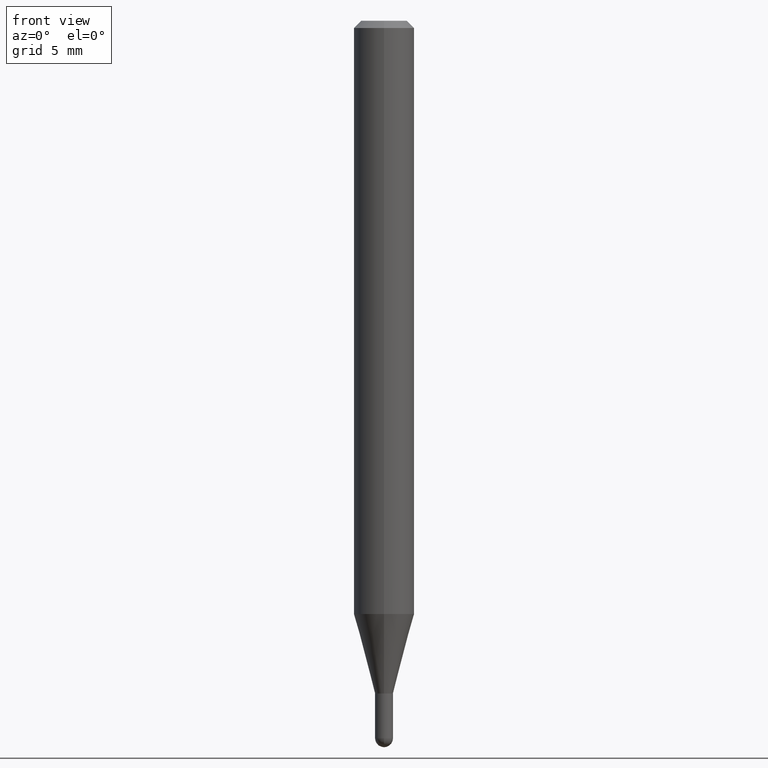
[diagram: clean part render]
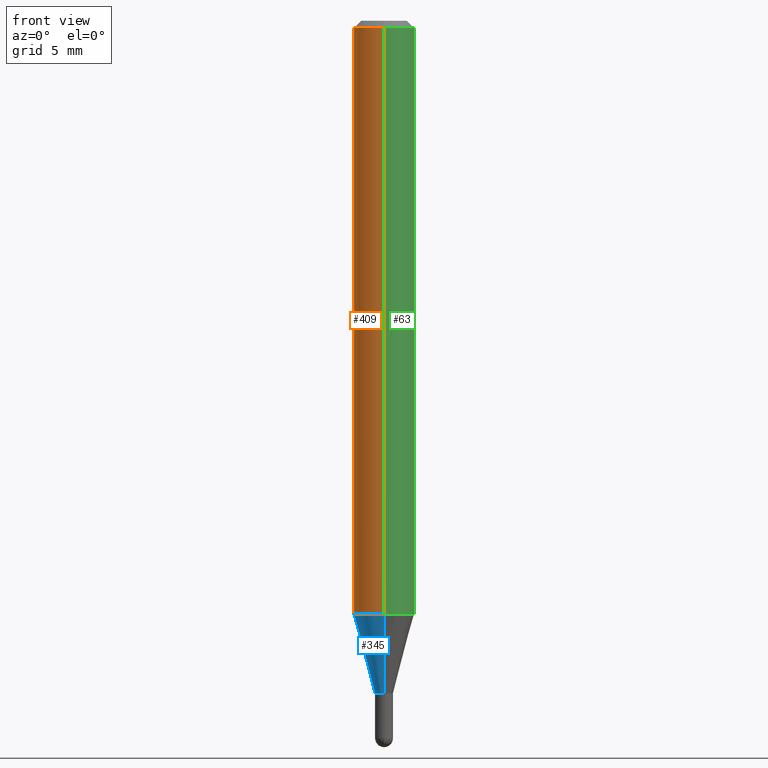
[diagram: same view with three faces highlighted in distinct colors, each labeled with its STEP entity id]
A machine part, front view with three faces highlighted in distinct colors.
Their STEP definitions:

[orange] entity #409 — the highlighted cylindrical surface (edge-blend (fillet) strip) has radius 1.5875 mm, axis along (-0, 0, 1).
#7 = CARTESIAN_POINT ( 'NONE',  ( -4.364351673553618406E-16, -0.06250000000000428824, -1.224789764466974296 ) ) ;
#23 = VECTOR ( 'NONE', #125, 39.37007874015748143 ) ;
#37 = EDGE_CURVE ( 'NONE', #161, #433, #406, .T. ) ;
#42 = DIRECTION ( 'NONE',  ( -6.982962677686265922E-15, -1.000000000000000000, 3.483106191921935554E-15 ) ) ;
#51 = CYLINDRICAL_SURFACE ( 'NONE', #77, 0.06250000000000000000 ) ;
#77 = AXIS2_PLACEMENT_3D ( 'NONE', #287, #94, #407 ) ;
#94 = DIRECTION ( 'NONE',  ( -2.445472053638043115E-29, 3.491476688305749916E-15, 1.000000000000000000 ) ) ;
#109 = CARTESIAN_POINT ( 'NONE',  ( 4.440892098500927901E-16, 0.06249999999999995837, -0.01500000000000022669 ) ) ;
#121 = CARTESIAN_POINT ( 'NONE',  ( 4.440892098500922971E-16, 0.06249999999999570482, -1.224789764466974962 ) ) ;
#125 = DIRECTION ( 'NONE',  ( -2.445472053638043115E-29, 3.491476688305749916E-15, 1.000000000000000000 ) ) ;
#161 = VERTEX_POINT ( 'NONE', #109 ) ;
#192 = DIRECTION ( 'NONE',  ( -2.445472053638043115E-29, 3.491476688305749916E-15, 1.000000000000000000 ) ) ;
#224 = DIRECTION ( 'NONE',  ( -6.982962677686265922E-15, -1.000000000000000000, 4.370956789862821150E-15 ) ) ;
#232 = AXIS2_PLACEMENT_3D ( 'NONE', #238, #402, #42 ) ;
#238 = CARTESIAN_POINT ( 'NONE',  ( 3.668208080457066968E-31, -5.237215032458628178E-17, -0.01500000000000000812 ) ) ;
#248 = FACE_OUTER_BOUND ( 'NONE', #353, .T. ) ;
#287 = CARTESIAN_POINT ( 'NONE',  ( 0.000000000000000000, 0.000000000000000000, 0.000000000000000000 ) ) ;
#307 = EDGE_CURVE ( 'NONE', #351, #437, #503, .T. ) ;
#314 = ORIENTED_EDGE ( 'NONE', *, *, #379, .F. ) ;
#322 = LINE ( 'NONE', #472, #23 ) ;
#329 = LINE ( 'NONE', #408, #347 ) ;
#347 = VECTOR ( 'NONE', #378, 39.37007874015748143 ) ;
#351 = VERTEX_POINT ( 'NONE', #121 ) ;
#353 = EDGE_LOOP ( 'NONE', ( #314, #429, #470, #412 ) ) ;
#355 = CARTESIAN_POINT ( 'NONE',  ( 2.995189140585907376E-29, -4.276324910711931920E-15, -1.224789764466974740 ) ) ;
#378 = DIRECTION ( 'NONE',  ( -2.445472053638043115E-29, 3.491476688305749916E-15, 1.000000000000000000 ) ) ;
#379 = EDGE_CURVE ( 'NONE', #351, #161, #322, .T. ) ;
#402 = DIRECTION ( 'NONE',  ( -2.445472053638043115E-29, 3.491476688305749916E-15, 1.000000000000000000 ) ) ;
#406 = CIRCLE ( 'NONE', #232, 0.06250000000000000000 ) ;
#407 = DIRECTION ( 'NONE',  ( -6.982962677686265922E-15, -1.000000000000000000, 3.491476688305749522E-15 ) ) ;
#408 = CARTESIAN_POINT ( 'NONE',  ( -4.364351673553916201E-16, -0.06250000000000000000, 2.182172930191093451E-16 ) ) ;
#409 = ADVANCED_FACE ( 'NONE', ( #248 ), #51, .T. ) ;
#412 = ORIENTED_EDGE ( 'NONE', *, *, #37, .F. ) ;
#419 = AXIS2_PLACEMENT_3D ( 'NONE', #355, #192, #224 ) ;
#427 = EDGE_CURVE ( 'NONE', #437, #433, #329, .T. ) ;
#429 = ORIENTED_EDGE ( 'NONE', *, *, #307, .T. ) ;
#433 = VERTEX_POINT ( 'NONE', #445 ) ;
#437 = VERTEX_POINT ( 'NONE', #7 ) ;
#445 = CARTESIAN_POINT ( 'NONE',  ( -4.364351673553912750E-16, -0.06250000000000005551, -0.01499999999999979128 ) ) ;
#470 = ORIENTED_EDGE ( 'NONE', *, *, #427, .T. ) ;
#472 = CARTESIAN_POINT ( 'NONE',  ( 4.440892098500625669E-16, 0.06250000000000000000, -2.182172930191093451E-16 ) ) ;
#503 = CIRCLE ( 'NONE', #419, 0.06250000000000000000 ) ;

[blue] entity #345 — the highlighted conical surface has half-angle 15 deg.
#2 = LINE ( 'NONE', #398, #367 ) ;
#7 = CARTESIAN_POINT ( 'NONE',  ( -4.364351673553618406E-16, -0.06250000000000428824, -1.224789764466974296 ) ) ;
#12 = EDGE_CURVE ( 'NONE', #290, #351, #2, .T. ) ;
#60 = AXIS2_PLACEMENT_3D ( 'NONE', #264, #502, #506 ) ;
#80 = ORIENTED_EDGE ( 'NONE', *, *, #315, .T. ) ;
#88 = ORIENTED_EDGE ( 'NONE', *, *, #149, .T. ) ;
#91 = CARTESIAN_POINT ( 'NONE',  ( -1.291848095371614353E-16, -0.01850000000000477304, -1.389000000000000234 ) ) ;
#95 = DIRECTION ( 'NONE',  ( -1.807323732225379838E-15, -0.2588190451025252914, 0.9659258262890670910 ) ) ;
#97 = CONICAL_SURFACE ( 'NONE', #126, 0.01849999999999992623, 0.2617993877991576235 ) ;
#121 = CARTESIAN_POINT ( 'NONE',  ( 4.440892098500922971E-16, 0.06249999999999570482, -1.224789764466974962 ) ) ;
#126 = AXIS2_PLACEMENT_3D ( 'NONE', #459, #154, #318 ) ;
#149 = EDGE_CURVE ( 'NONE', #180, #437, #316, .T. ) ;
#154 = DIRECTION ( 'NONE',  ( -2.445472053638043115E-29, 3.491476688305749916E-15, 1.000000000000000000 ) ) ;
#160 = DIRECTION ( 'NONE',  ( 1.839019923739650408E-15, 0.2588190451025320082, 0.9659258262890650926 ) ) ;
#173 = ORIENTED_EDGE ( 'NONE', *, *, #307, .F. ) ;
#180 = VERTEX_POINT ( 'NONE', #91 ) ;
#192 = DIRECTION ( 'NONE',  ( -2.445472053638043115E-29, 3.491476688305749916E-15, 1.000000000000000000 ) ) ;
#195 = FACE_OUTER_BOUND ( 'NONE', #466, .T. ) ;
#224 = DIRECTION ( 'NONE',  ( -6.982962677686265922E-15, -1.000000000000000000, 4.370956789862821150E-15 ) ) ;
#247 = ORIENTED_EDGE ( 'NONE', *, *, #12, .F. ) ;
#264 = CARTESIAN_POINT ( 'NONE',  ( 3.396760682503241373E-29, -4.849661120056686555E-15, -1.389000000000000234 ) ) ;
#283 = CIRCLE ( 'NONE', #60, 0.01849999999999992623 ) ;
#290 = VERTEX_POINT ( 'NONE', #430 ) ;
#307 = EDGE_CURVE ( 'NONE', #351, #437, #503, .T. ) ;
#315 = EDGE_CURVE ( 'NONE', #290, #180, #283, .T. ) ;
#316 = LINE ( 'NONE', #442, #413 ) ;
#318 = DIRECTION ( 'NONE',  ( -6.982962677686265922E-15, -1.000000000000000000, 0.000000000000000000 ) ) ;
#345 = ADVANCED_FACE ( 'NONE', ( #195 ), #97, .T. ) ;
#351 = VERTEX_POINT ( 'NONE', #121 ) ;
#355 = CARTESIAN_POINT ( 'NONE',  ( 2.995189140585907376E-29, -4.276324910711931920E-15, -1.224789764466974740 ) ) ;
#367 = VECTOR ( 'NONE', #160, 39.37007874015748854 ) ;
#398 = CARTESIAN_POINT ( 'NONE',  ( 1.314504061156519559E-16, 0.01849999999999507594, -1.389000000000000234 ) ) ;
#413 = VECTOR ( 'NONE', #95, 39.37007874015748143 ) ;
#419 = AXIS2_PLACEMENT_3D ( 'NONE', #355, #192, #224 ) ;
#430 = CARTESIAN_POINT ( 'NONE',  ( 2.877698079828723853E-16, 0.01849999999999507594, -1.389000000000000234 ) ) ;
#437 = VERTEX_POINT ( 'NONE', #7 ) ;
#442 = CARTESIAN_POINT ( 'NONE',  ( -1.291848095371614353E-16, -0.01850000000000477304, -1.389000000000000234 ) ) ;
#459 = CARTESIAN_POINT ( 'NONE',  ( 3.396760682503241373E-29, -4.849661120056686555E-15, -1.389000000000000234 ) ) ;
#466 = EDGE_LOOP ( 'NONE', ( #247, #80, #88, #173 ) ) ;
#502 = DIRECTION ( 'NONE',  ( -2.445472053638043115E-29, 3.491476688305749916E-15, 1.000000000000000000 ) ) ;
#503 = CIRCLE ( 'NONE', #419, 0.06250000000000000000 ) ;
#506 = DIRECTION ( 'NONE',  ( -6.982962677686265922E-15, -1.000000000000000000, 0.000000000000000000 ) ) ;

[green] entity #63 — the highlighted cylindrical surface (edge-blend (fillet) strip) has radius 1.5875 mm, axis along (-0, 0, 1).
#7 = CARTESIAN_POINT ( 'NONE',  ( -4.364351673553618406E-16, -0.06250000000000428824, -1.224789764466974296 ) ) ;
#8 = AXIS2_PLACEMENT_3D ( 'NONE', #188, #354, #32 ) ;
#23 = VECTOR ( 'NONE', #125, 39.37007874015748143 ) ;
#32 = DIRECTION ( 'NONE',  ( -6.982962677686265922E-15, -1.000000000000000000, 3.491476688305749522E-15 ) ) ;
#63 = ADVANCED_FACE ( 'NONE', ( #231 ), #471, .T. ) ;
#103 = CIRCLE ( 'NONE', #395, 0.06250000000000000000 ) ;
#109 = CARTESIAN_POINT ( 'NONE',  ( 4.440892098500927901E-16, 0.06249999999999995837, -0.01500000000000022669 ) ) ;
#116 = ORIENTED_EDGE ( 'NONE', *, *, #379, .T. ) ;
#121 = CARTESIAN_POINT ( 'NONE',  ( 4.440892098500922971E-16, 0.06249999999999570482, -1.224789764466974962 ) ) ;
#125 = DIRECTION ( 'NONE',  ( -2.445472053638043115E-29, 3.491476688305749916E-15, 1.000000000000000000 ) ) ;
#129 = DIRECTION ( 'NONE',  ( -2.445472053638043115E-29, 3.491476688305749916E-15, 1.000000000000000000 ) ) ;
#130 = CARTESIAN_POINT ( 'NONE',  ( 2.995189140585907376E-29, -4.276324910711931920E-15, -1.224789764466974740 ) ) ;
#142 = ORIENTED_EDGE ( 'NONE', *, *, #158, .F. ) ;
#158 = EDGE_CURVE ( 'NONE', #433, #161, #292, .T. ) ;
#161 = VERTEX_POINT ( 'NONE', #109 ) ;
#188 = CARTESIAN_POINT ( 'NONE',  ( 0.000000000000000000, 0.000000000000000000, 0.000000000000000000 ) ) ;
#231 = FACE_OUTER_BOUND ( 'NONE', #280, .T. ) ;
#251 = DIRECTION ( 'NONE',  ( -2.445472053638043115E-29, 3.491476688305749916E-15, 1.000000000000000000 ) ) ;
#254 = ORIENTED_EDGE ( 'NONE', *, *, #427, .F. ) ;
#280 = EDGE_LOOP ( 'NONE', ( #385, #116, #142, #254 ) ) ;
#292 = CIRCLE ( 'NONE', #368, 0.06250000000000000000 ) ;
#306 = CARTESIAN_POINT ( 'NONE',  ( 3.668208080457066968E-31, -5.237215032458628178E-17, -0.01500000000000000812 ) ) ;
#322 = LINE ( 'NONE', #472, #23 ) ;
#328 = DIRECTION ( 'NONE',  ( -6.982962677686265922E-15, -1.000000000000000000, 4.370956789862821150E-15 ) ) ;
#329 = LINE ( 'NONE', #408, #347 ) ;
#337 = DIRECTION ( 'NONE',  ( -6.982962677686265922E-15, -1.000000000000000000, 3.483106191921935554E-15 ) ) ;
#347 = VECTOR ( 'NONE', #378, 39.37007874015748143 ) ;
#351 = VERTEX_POINT ( 'NONE', #121 ) ;
#354 = DIRECTION ( 'NONE',  ( -2.445472053638043115E-29, 3.491476688305749916E-15, 1.000000000000000000 ) ) ;
#368 = AXIS2_PLACEMENT_3D ( 'NONE', #306, #251, #337 ) ;
#378 = DIRECTION ( 'NONE',  ( -2.445472053638043115E-29, 3.491476688305749916E-15, 1.000000000000000000 ) ) ;
#379 = EDGE_CURVE ( 'NONE', #351, #161, #322, .T. ) ;
#385 = ORIENTED_EDGE ( 'NONE', *, *, #391, .T. ) ;
#391 = EDGE_CURVE ( 'NONE', #437, #351, #103, .T. ) ;
#395 = AXIS2_PLACEMENT_3D ( 'NONE', #130, #129, #328 ) ;
#408 = CARTESIAN_POINT ( 'NONE',  ( -4.364351673553916201E-16, -0.06250000000000000000, 2.182172930191093451E-16 ) ) ;
#427 = EDGE_CURVE ( 'NONE', #437, #433, #329, .T. ) ;
#433 = VERTEX_POINT ( 'NONE', #445 ) ;
#437 = VERTEX_POINT ( 'NONE', #7 ) ;
#445 = CARTESIAN_POINT ( 'NONE',  ( -4.364351673553912750E-16, -0.06250000000000005551, -0.01499999999999979128 ) ) ;
#471 = CYLINDRICAL_SURFACE ( 'NONE', #8, 0.06250000000000000000 ) ;
#472 = CARTESIAN_POINT ( 'NONE',  ( 4.440892098500625669E-16, 0.06250000000000000000, -2.182172930191093451E-16 ) ) ;